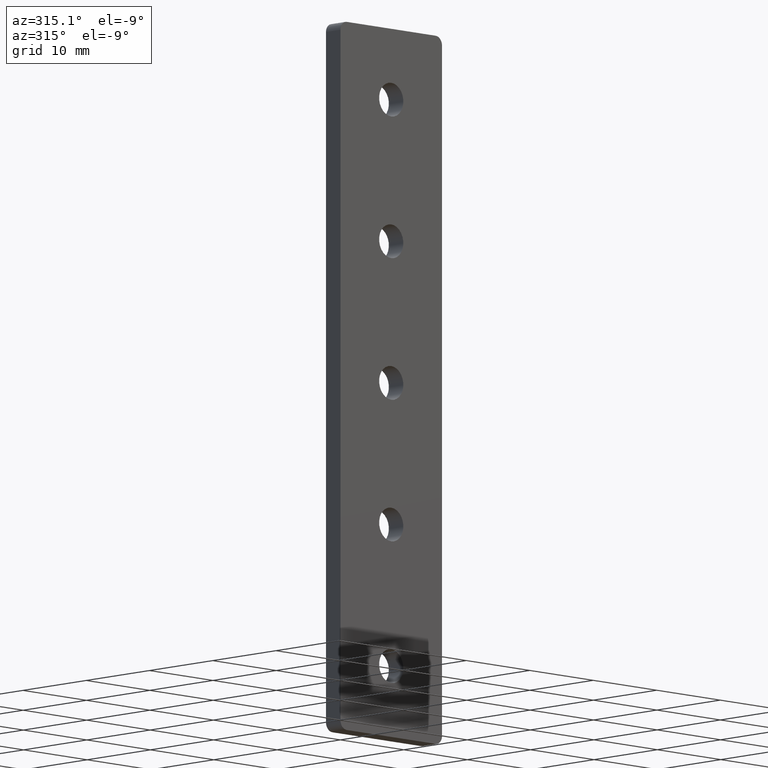
[diagram: clean part render]
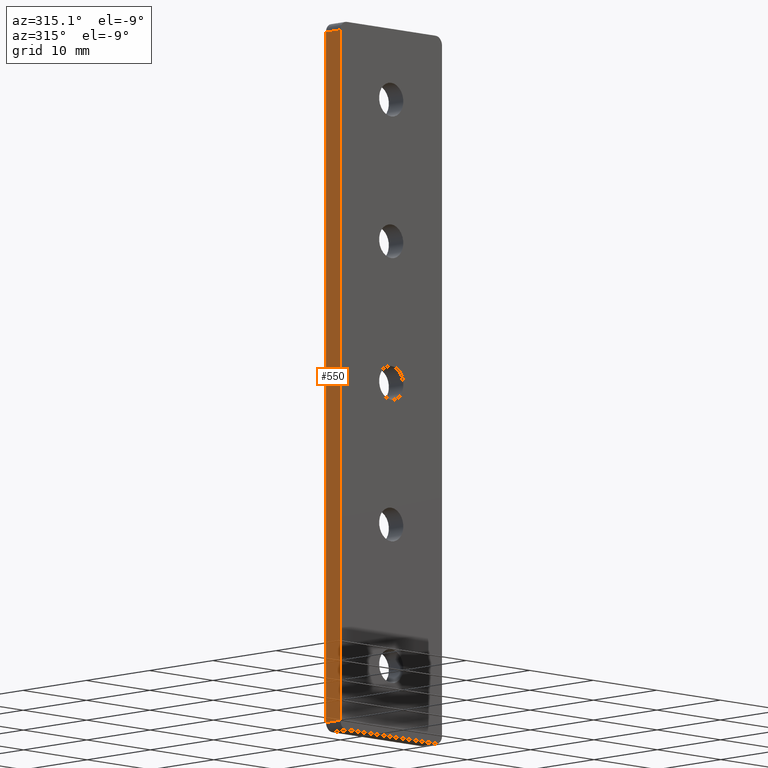
[diagram: same view with one face highlighted and labeled with its STEP entity id]
A machine part, auxiliary view. The second image highlights one B-rep face of the part: STEP entity #550.
In plain terms, the highlighted planar face has unit normal (-1, 0, 0).
Its self-contained STEP definition (entity closure, byte-faithful):
#11 = CARTESIAN_POINT ( 'NONE',  ( 0.0000000000000000000, 2.286000000000000000, -79.00000000000000000 ) ) ;
#33 = ORIENTED_EDGE ( 'NONE', *, *, #596, .T. ) ;
#44 = AXIS2_PLACEMENT_3D ( 'NONE', #330, #618, #260 ) ;
#120 = ORIENTED_EDGE ( 'NONE', *, *, #632, .T. ) ;
#145 = CARTESIAN_POINT ( 'NONE',  ( 0.0000000000000000000, 0.0000000000000000000, -1.000000000000000000 ) ) ;
#156 = LINE ( 'NONE', #11, #544 ) ;
#167 = CARTESIAN_POINT ( 'NONE',  ( 0.0000000000000000000, 0.0000000000000000000, -79.00000000000000000 ) ) ;
#171 = VECTOR ( 'NONE', #579, 1000.000000000000000 ) ;
#198 = VECTOR ( 'NONE', #706, 1000.000000000000000 ) ;
#215 = DIRECTION ( 'NONE',  ( 0.0000000000000000000, 0.0000000000000000000, -1.000000000000000000 ) ) ;
#219 = VECTOR ( 'NONE', #215, 1000.000000000000000 ) ;
#260 = DIRECTION ( 'NONE',  ( 0.0000000000000000000, 0.0000000000000000000, 1.000000000000000000 ) ) ;
#280 = VERTEX_POINT ( 'NONE', #167 ) ;
#313 = DIRECTION ( 'NONE',  ( 0.0000000000000000000, -1.000000000000000000, 0.0000000000000000000 ) ) ;
#330 = CARTESIAN_POINT ( 'NONE',  ( 0.0000000000000000000, 2.286000000000000000, 0.0000000000000000000 ) ) ;
#340 = VERTEX_POINT ( 'NONE', #546 ) ;
#355 = ORIENTED_EDGE ( 'NONE', *, *, #489, .F. ) ;
#364 = LINE ( 'NONE', #703, #198 ) ;
#378 = PLANE ( 'NONE',  #44 ) ;
#421 = VERTEX_POINT ( 'NONE', #481 ) ;
#451 = VERTEX_POINT ( 'NONE', #145 ) ;
#460 = ORIENTED_EDGE ( 'NONE', *, *, #503, .T. ) ;
#481 = CARTESIAN_POINT ( 'NONE',  ( 0.0000000000000000000, 2.286000000000000000, -1.000000000000000000 ) ) ;
#489 = EDGE_CURVE ( 'NONE', #451, #280, #654, .T. ) ;
#503 = EDGE_CURVE ( 'NONE', #451, #421, #364, .T. ) ;
#526 = CARTESIAN_POINT ( 'NONE',  ( 0.0000000000000000000, 0.0000000000000000000, 0.0000000000000000000 ) ) ;
#544 = VECTOR ( 'NONE', #313, 1000.000000000000000 ) ;
#546 = CARTESIAN_POINT ( 'NONE',  ( 0.0000000000000000000, 2.286000000000000000, -79.00000000000000000 ) ) ;
#550 = ADVANCED_FACE ( 'NONE', ( #580 ), #378, .T. ) ;
#552 = EDGE_LOOP ( 'NONE', ( #355, #460, #120, #33 ) ) ;
#564 = CARTESIAN_POINT ( 'NONE',  ( 0.0000000000000000000, 2.286000000000000000, 0.0000000000000000000 ) ) ;
#579 = DIRECTION ( 'NONE',  ( 0.0000000000000000000, 0.0000000000000000000, -1.000000000000000000 ) ) ;
#580 = FACE_OUTER_BOUND ( 'NONE', #552, .T. ) ;
#596 = EDGE_CURVE ( 'NONE', #340, #280, #156, .T. ) ;
#618 = DIRECTION ( 'NONE',  ( -1.000000000000000000, 0.0000000000000000000, 0.0000000000000000000 ) ) ;
#632 = EDGE_CURVE ( 'NONE', #421, #340, #642, .T. ) ;
#642 = LINE ( 'NONE', #564, #171 ) ;
#654 = LINE ( 'NONE', #526, #219 ) ;
#703 = CARTESIAN_POINT ( 'NONE',  ( 0.0000000000000000000, 2.286000000000000000, -1.000000000000000000 ) ) ;
#706 = DIRECTION ( 'NONE',  ( -0.0000000000000000000, 1.000000000000000000, -0.0000000000000000000 ) ) ;